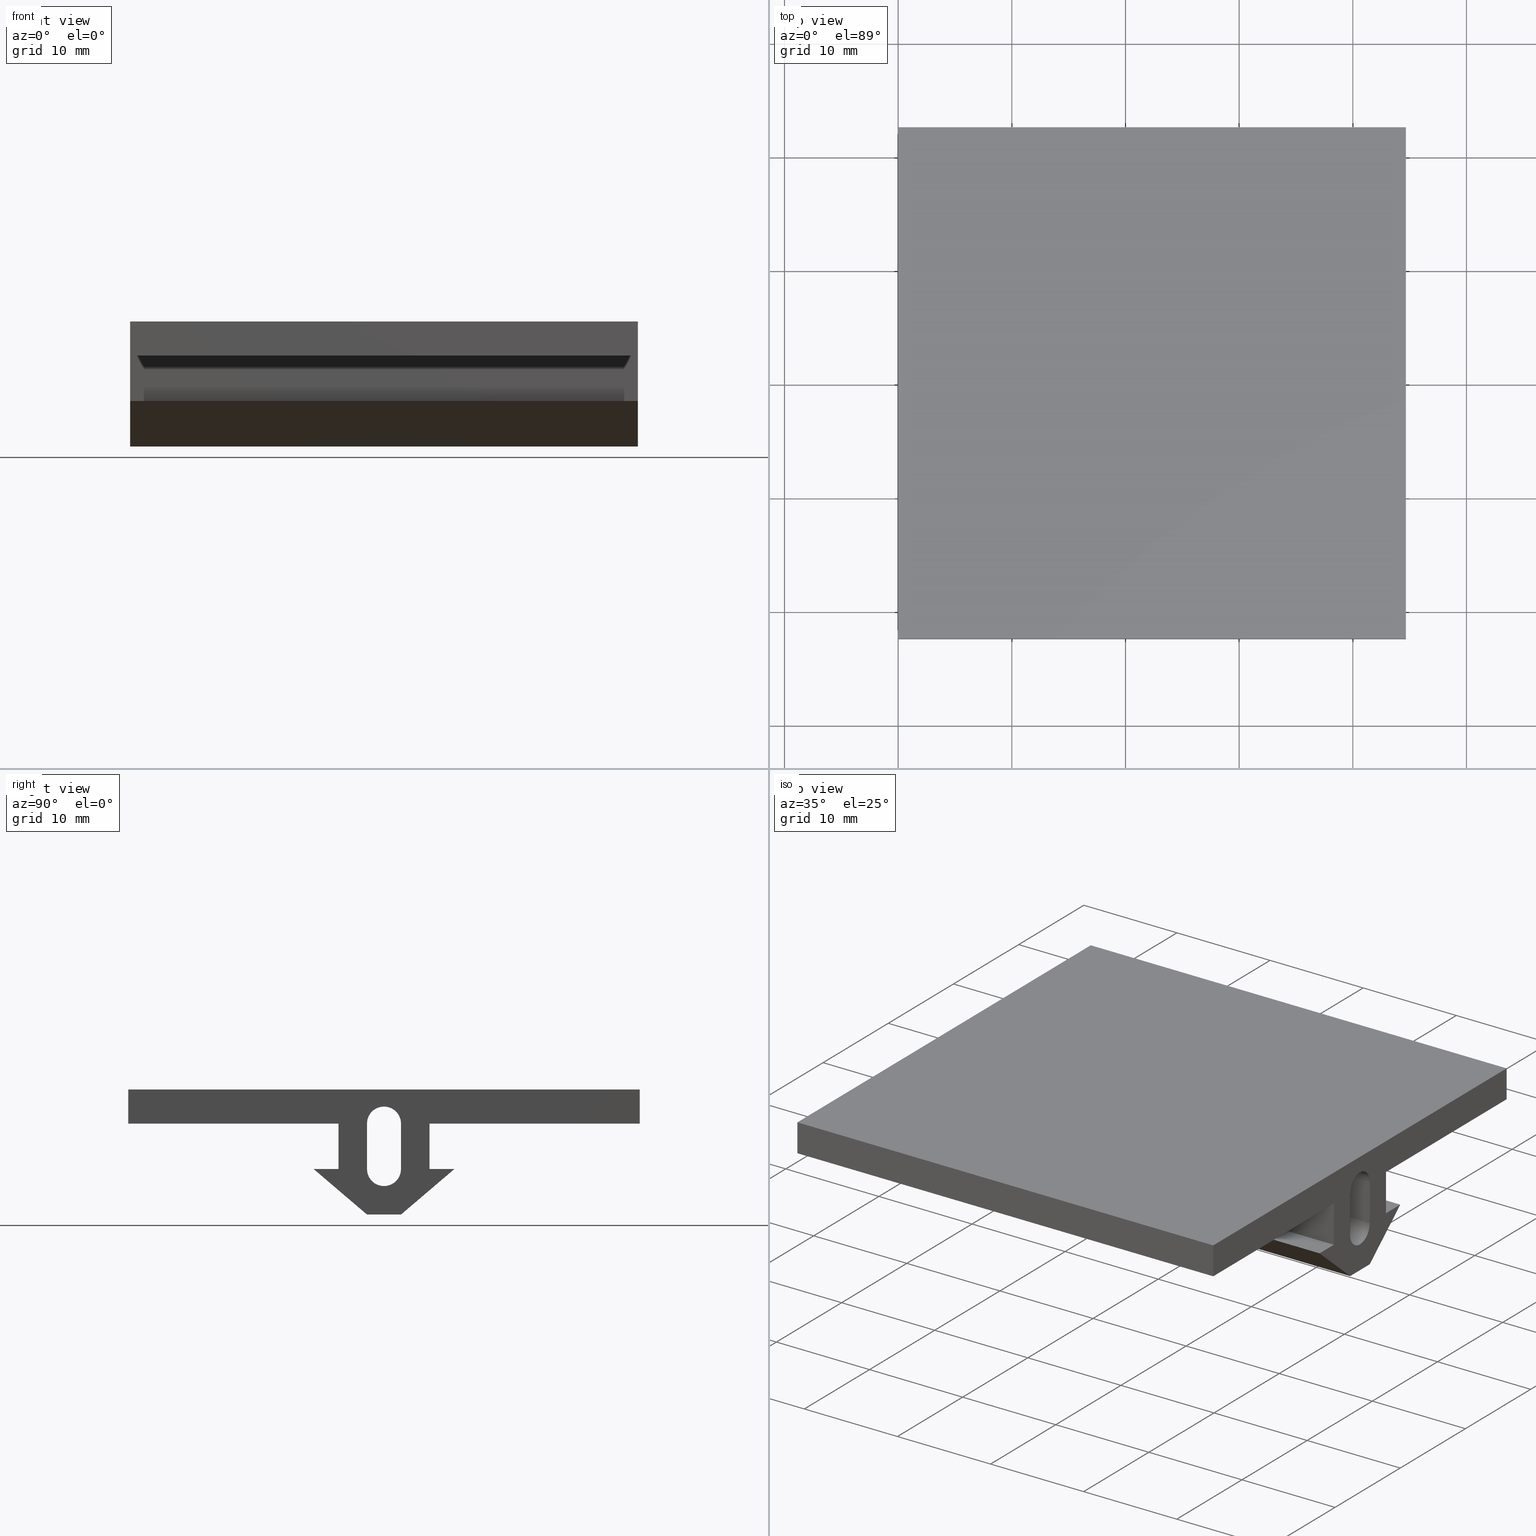
[diagram: canonical four-view strip — front | top / right | iso, engineering-drawing reading convention]
A machine part, canonical four-view strip (front | top / right | iso — engineering-drawing reading convention). The complete STEP part file that produces these views, byte-faithful:
ISO-10303-21;
HEADER;
FILE_DESCRIPTION (( 'STEP AP203' ),
    '1' );
FILE_NAME ('Part4.STEP',
    '2011-05-05T07:06:42',
    ( ' ' ),
    ( ' ' ),
    'SwSTEP 2.0',
    'SolidWorks 2009',
    '' );
FILE_SCHEMA (( 'CONFIG_CONTROL_DESIGN' ));
ENDSEC;

DATA;
#1 = EDGE_CURVE ( 'NONE', #173, #171, #128, .T. ) ;
#2 = EDGE_LOOP ( 'NONE', ( #219, #202, #52, #54 ) ) ;
#3 = ADVANCED_FACE ( 'NONE', ( #129 ), #123, .F. ) ;
#4 = ORIENTED_EDGE ( 'NONE', *, *, #7, .T. ) ;
#5 = ORIENTED_EDGE ( 'NONE', *, *, #209, .T. ) ;
#6 = EDGE_LOOP ( 'NONE', ( #204, #47, #165, #168 ) ) ;
#7 = EDGE_CURVE ( 'NONE', #24, #171, #298, .T. ) ;
#8 = ORIENTED_EDGE ( 'NONE', *, *, #14, .F. ) ;
#9 = EDGE_CURVE ( 'NONE', #16, #24, #294, .T. ) ;
#10 = VERTEX_POINT ( 'NONE', #289 ) ;
#11 = EDGE_LOOP ( 'NONE', ( #174, #4, #172, #8 ) ) ;
#12 = ADVANCED_FACE ( 'NONE', ( #288 ), #287, .F. ) ;
#13 = ORIENTED_EDGE ( 'NONE', *, *, #214, .F. ) ;
#14 = EDGE_CURVE ( 'NONE', #16, #173, #154, .T. ) ;
#15 = VERTEX_POINT ( 'NONE', #150 ) ;
#16 = VERTEX_POINT ( 'NONE', #149 ) ;
#17 = EDGE_CURVE ( 'NONE', #10, #15, #147, .T. ) ;
#18 = ORIENTED_EDGE ( 'NONE', *, *, #17, .F. ) ;
#19 = EDGE_CURVE ( 'NONE', #201, #15, #148, .T. ) ;
#20 = ORIENTED_EDGE ( 'NONE', *, *, #23, .T. ) ;
#21 = ORIENTED_EDGE ( 'NONE', *, *, #19, .T. ) ;
#22 = ORIENTED_EDGE ( 'NONE', *, *, #220, .F. ) ;
#23 = EDGE_CURVE ( 'NONE', #15, #218, #281, .T. ) ;
#24 = VERTEX_POINT ( 'NONE', #277 ) ;
#25 = ORIENTED_EDGE ( 'NONE', *, *, #26, .F. ) ;
#26 = EDGE_CURVE ( 'NONE', #10, #210, #254, .T. ) ;
#27 = ORIENTED_EDGE ( 'NONE', *, *, #32, .F. ) ;
#28 = EDGE_CURVE ( 'NONE', #218, #29, #250, .T. ) ;
#29 = VERTEX_POINT ( 'NONE', #246 ) ;
#30 = ADVANCED_FACE ( 'NONE', ( #245 ), #244, .F. ) ;
#31 = ORIENTED_EDGE ( 'NONE', *, *, #220, .T. ) ;
#32 = EDGE_CURVE ( 'NONE', #210, #36, #239, .T. ) ;
#33 = ORIENTED_EDGE ( 'NONE', *, *, #79, .T. ) ;
#34 = EDGE_LOOP ( 'NONE', ( #33, #44, #77, #46 ) ) ;
#35 = EDGE_CURVE ( 'NONE', #36, #29, #186, .T. ) ;
#36 = VERTEX_POINT ( 'NONE', #182 ) ;
#37 = ORIENTED_EDGE ( 'NONE', *, *, #35, .F. ) ;
#38 = ADVANCED_FACE ( 'NONE', ( #181 ), #177, .F. ) ;
#39 = ORIENTED_EDGE ( 'NONE', *, *, #262, .T. ) ;
#40 = VERTEX_POINT ( 'NONE', #178 ) ;
#41 = EDGE_CURVE ( 'NONE', #40, #42, #275, .T. ) ;
#42 = VERTEX_POINT ( 'NONE', #271 ) ;
#43 = ORIENTED_EDGE ( 'NONE', *, *, #74, .T. ) ;
#44 = ORIENTED_EDGE ( 'NONE', *, *, #41, .F. ) ;
#45 = EDGE_CURVE ( 'NONE', #36, #40, #269, .T. ) ;
#46 = ORIENTED_EDGE ( 'NONE', *, *, #35, .T. ) ;
#47 = ORIENTED_EDGE ( 'NONE', *, *, #48, .F. ) ;
#48 = EDGE_CURVE ( 'NONE', #49, #207, #333, .T. ) ;
#49 = VERTEX_POINT ( 'NONE', #334 ) ;
#50 = EDGE_CURVE ( 'NONE', #51, #201, #483, .T. ) ;
#51 = VERTEX_POINT ( 'NONE', #479 ) ;
#52 = ORIENTED_EDGE ( 'NONE', *, *, #53, .F. ) ;
#53 = EDGE_CURVE ( 'NONE', #60, #51, #478, .T. ) ;
#54 = ORIENTED_EDGE ( 'NONE', *, *, #59, .T. ) ;
#55 = ADVANCED_FACE ( 'NONE', ( #336 ), #492, .F. ) ;
#56 = EDGE_LOOP ( 'NONE', ( #21, #18, #13, #215 ) ) ;
#57 = VERTEX_POINT ( 'NONE', #501 ) ;
#58 = ORIENTED_EDGE ( 'NONE', *, *, #59, .F. ) ;
#59 = EDGE_CURVE ( 'NONE', #60, #57, #441, .T. ) ;
#60 = VERTEX_POINT ( 'NONE', #437 ) ;
#61 = ORIENTED_EDGE ( 'NONE', *, *, #62, .F. ) ;
#62 = EDGE_CURVE ( 'NONE', #221, #60, #436, .T. ) ;
#63 = ORIENTED_EDGE ( 'NONE', *, *, #263, .F. ) ;
#64 = ORIENTED_EDGE ( 'NONE', *, *, #65, .T. ) ;
#65 = EDGE_CURVE ( 'NONE', #76, #66, #432, .T. ) ;
#66 = VERTEX_POINT ( 'NONE', #428 ) ;
#67 = VERTEX_POINT ( 'NONE', #427 ) ;
#68 = ADVANCED_FACE ( 'NONE', ( #426 ), #425, .F. ) ;
#69 = EDGE_CURVE ( 'NONE', #40, #67, #448, .T. ) ;
#70 = ORIENTED_EDGE ( 'NONE', *, *, #41, .T. ) ;
#71 = ORIENTED_EDGE ( 'NONE', *, *, #69, .F. ) ;
#72 = EDGE_LOOP ( 'NONE', ( #64, #63, #306, #304 ) ) ;
#73 = EDGE_CURVE ( 'NONE', #67, #76, #444, .T. ) ;
#74 = EDGE_CURVE ( 'NONE', #42, #76, #419, .T. ) ;
#75 = ORIENTED_EDGE ( 'NONE', *, *, #73, .F. ) ;
#76 = VERTEX_POINT ( 'NONE', #415 ) ;
#77 = ORIENTED_EDGE ( 'NONE', *, *, #45, .F. ) ;
#78 = EDGE_LOOP ( 'NONE', ( #43, #75, #71, #70 ) ) ;
#79 = EDGE_CURVE ( 'NONE', #29, #42, #414, .T. ) ;
#80 = EDGE_LOOP ( 'NONE', ( #258, #260, #261, #96 ) ) ;
#81 = ORIENTED_EDGE ( 'NONE', *, *, #26, .T. ) ;
#82 = ORIENTED_EDGE ( 'NONE', *, *, #32, .T. ) ;
#83 = ORIENTED_EDGE ( 'NONE', *, *, #45, .T. ) ;
#84 = ORIENTED_EDGE ( 'NONE', *, *, #69, .T. ) ;
#85 = ORIENTED_EDGE ( 'NONE', *, *, #264, .T. ) ;
#86 = ORIENTED_EDGE ( 'NONE', *, *, #238, .T. ) ;
#87 = ORIENTED_EDGE ( 'NONE', *, *, #7, .F. ) ;
#88 = EDGE_LOOP ( 'NONE', ( #305, #233, #237, #115 ) ) ;
#89 = ORIENTED_EDGE ( 'NONE', *, *, #90, .T. ) ;
#90 = EDGE_CURVE ( 'NONE', #309, #91, #410, .T. ) ;
#91 = VERTEX_POINT ( 'NONE', #406 ) ;
#92 = ADVANCED_FACE ( 'NONE', ( #405 ), #404, .F. ) ;
#93 = ORIENTED_EDGE ( 'NONE', *, *, #94, .F. ) ;
#94 = EDGE_CURVE ( 'NONE', #171, #91, #399, .T. ) ;
#95 = ADVANCED_FACE ( 'NONE', ( #394 ), #390, .F. ) ;
#96 = ORIENTED_EDGE ( 'NONE', *, *, #265, .T. ) ;
#97 = ADVANCED_FACE ( 'NONE', ( #391, #529 ), #528, .T. ) ;
#98 = EDGE_LOOP ( 'NONE', ( #99, #100, #101, #266, #267 ) ) ;
#99 = ORIENTED_EDGE ( 'NONE', *, *, #9, .F. ) ;
#100 = ORIENTED_EDGE ( 'NONE', *, *, #117, .F. ) ;
#101 = ORIENTED_EDGE ( 'NONE', *, *, #107, .F. ) ;
#102 = VERTEX_POINT ( 'NONE', #526 ) ;
#103 = ORIENTED_EDGE ( 'NONE', *, *, #104, .F. ) ;
#104 = EDGE_CURVE ( 'NONE', #105, #102, #332, .T. ) ;
#105 = VERTEX_POINT ( 'NONE', #328 ) ;
#106 = ORIENTED_EDGE ( 'NONE', *, *, #107, .T. ) ;
#107 = EDGE_CURVE ( 'NONE', #105, #303, #327, .T. ) ;
#108 = ORIENTED_EDGE ( 'NONE', *, *, #302, .T. ) ;
#109 = ADVANCED_FACE ( 'NONE', ( #322 ), #321, .T. ) ;
#110 = EDGE_LOOP ( 'NONE', ( #111, #113, #114, #311 ) ) ;
#111 = ORIENTED_EDGE ( 'NONE', *, *, #112, .F. ) ;
#112 = EDGE_CURVE ( 'NONE', #91, #102, #315, .T. ) ;
#113 = ORIENTED_EDGE ( 'NONE', *, *, #90, .F. ) ;
#114 = ORIENTED_EDGE ( 'NONE', *, *, #310, .T. ) ;
#115 = ORIENTED_EDGE ( 'NONE', *, *, #263, .T. ) ;
#116 = ORIENTED_EDGE ( 'NONE', *, *, #117, .T. ) ;
#117 = EDGE_CURVE ( 'NONE', #303, #16, #475, .T. ) ;
#118 = ORIENTED_EDGE ( 'NONE', *, *, #14, .T. ) ;
#119 = DIRECTION ( 'NONE',  ( 0.0000000000000000000, 1.000000000000000000, 3.958170582816934900E-016 ) ) ;
#120 = DIRECTION ( 'NONE',  ( 0.0000000000000000000, 3.958170582816934900E-016, -1.000000000000000000 ) ) ;
#121 = CARTESIAN_POINT ( 'NONE',  ( 44.66704193895279200, -4.000000000000001800, -7.000000000000002700 ) ) ;
#122 = AXIS2_PLACEMENT_3D ( 'NONE', #121, #120, #119 ) ;
#123 = PLANE ( 'NONE',  #122 ) ;
#124 = DIRECTION ( 'NONE',  ( 0.0000000000000000000, 0.0000000000000000000, -1.000000000000000000 ) ) ;
#125 = DIRECTION ( 'NONE',  ( 1.000000000000000000, 0.0000000000000000000, 0.0000000000000000000 ) ) ;
#126 = CARTESIAN_POINT ( 'NONE',  ( 0.0000000000000000000, 3.673819061467131800E-016, -3.000000000000000000 ) ) ;
#127 = AXIS2_PLACEMENT_3D ( 'NONE', #126, #125, #124 ) ;
#128 = CIRCLE ( 'NONE', #127, 1.500000000000000400 ) ;
#129 = FACE_OUTER_BOUND ( 'NONE', #2, .T. ) ;
#130 = ORIENTED_EDGE ( 'NONE', *, *, #200, .F. ) ;
#131 = ORIENTED_EDGE ( 'NONE', *, *, #65, .F. ) ;
#132 = ORIENTED_EDGE ( 'NONE', *, *, #74, .F. ) ;
#133 = ORIENTED_EDGE ( 'NONE', *, *, #313, .F. ) ;
#134 = ORIENTED_EDGE ( 'NONE', *, *, #23, .F. ) ;
#135 = ORIENTED_EDGE ( 'NONE', *, *, #79, .F. ) ;
#136 = ORIENTED_EDGE ( 'NONE', *, *, #255, .F. ) ;
#137 = CLOSED_SHELL ( 'NONE', ( #12, #203, #314, #225, #3, #55, #216, #211, #30, #38, #68, #95, #92, #197, #228, #109, #312, #97, #196 ) ) ;
#138 = ORIENTED_EDGE ( 'NONE', *, *, #28, .F. ) ;
#139 = ORIENTED_EDGE ( 'NONE', *, *, #19, .F. ) ;
#140 = ORIENTED_EDGE ( 'NONE', *, *, #94, .T. ) ;
#141 = EDGE_LOOP ( 'NONE', ( #193, #194, #195, #131, #132, #135, #138, #134, #139, #130, #133, #136 ) ) ;
#142 = EDGE_LOOP ( 'NONE', ( #192, #140, #191, #190, #143 ) ) ;
#143 = ORIENTED_EDGE ( 'NONE', *, *, #299, .T. ) ;
#144 = DIRECTION ( 'NONE',  ( -1.000000000000000000, -0.0000000000000000000, -0.0000000000000000000 ) ) ;
#145 = VECTOR ( 'NONE', #144, 1000.000000000000000 ) ;
#146 = CARTESIAN_POINT ( 'NONE',  ( 44.66704193895279200, -1.499999999999998700, -11.00000000000000000 ) ) ;
#147 = LINE ( 'NONE', #146, #145 ) ;
#148 = LINE ( 'NONE', #284, #283 ) ;
#149 = CARTESIAN_POINT ( 'NONE',  ( 44.66704193895279200, 1.500000000000000900, -3.000000000000000000 ) ) ;
#150 = CARTESIAN_POINT ( 'NONE',  ( 0.0000000000000000000, -1.499999999999998700, -11.00000000000000000 ) ) ;
#151 = DIRECTION ( 'NONE',  ( -1.000000000000000000, -0.0000000000000000000, -0.0000000000000000000 ) ) ;
#152 = VECTOR ( 'NONE', #151, 1000.000000000000000 ) ;
#153 = CARTESIAN_POINT ( 'NONE',  ( 44.66704193895279200, 1.500000000000000900, -3.000000000000000000 ) ) ;
#154 = LINE ( 'NONE', #153, #152 ) ;
#155 = DIRECTION ( 'NONE',  ( 0.0000000000000000000, 0.0000000000000000000, 1.000000000000000000 ) ) ;
#156 = DIRECTION ( 'NONE',  ( -1.000000000000000000, -0.0000000000000000000, -0.0000000000000000000 ) ) ;
#157 = EDGE_LOOP ( 'NONE', ( #158, #208, #222, #224 ) ) ;
#158 = ORIENTED_EDGE ( 'NONE', *, *, #255, .T. ) ;
#159 = EDGE_LOOP ( 'NONE', ( #160, #161, #162, #163, #164, #81, #82, #83, #84, #85, #86, #39 ) ) ;
#160 = ORIENTED_EDGE ( 'NONE', *, *, #166, .T. ) ;
#161 = ORIENTED_EDGE ( 'NONE', *, *, #223, .T. ) ;
#162 = ORIENTED_EDGE ( 'NONE', *, *, #62, .T. ) ;
#163 = ORIENTED_EDGE ( 'NONE', *, *, #53, .T. ) ;
#164 = ORIENTED_EDGE ( 'NONE', *, *, #214, .T. ) ;
#165 = ORIENTED_EDGE ( 'NONE', *, *, #166, .F. ) ;
#166 = EDGE_CURVE ( 'NONE', #167, #49, #471, .T. ) ;
#167 = VERTEX_POINT ( 'NONE', #467 ) ;
#168 = ORIENTED_EDGE ( 'NONE', *, *, #169, .T. ) ;
#169 = EDGE_CURVE ( 'NONE', #167, #206, #466, .T. ) ;
#170 = MANIFOLD_SOLID_BREP ( 'NONE', #137 ) ;
#171 = VERTEX_POINT ( 'NONE', #462 ) ;
#172 = ORIENTED_EDGE ( 'NONE', *, *, #1, .F. ) ;
#173 = VERTEX_POINT ( 'NONE', #461 ) ;
#174 = ORIENTED_EDGE ( 'NONE', *, *, #9, .T. ) ;
#175 = ORIENTED_EDGE ( 'NONE', *, *, #17, .T. ) ;
#176 = AXIS2_PLACEMENT_3D ( 'NONE', #180, #179, #276 ) ;
#177 = PLANE ( 'NONE',  #176 ) ;
#178 = CARTESIAN_POINT ( 'NONE',  ( 44.66704193895279200, 4.000000000000003600, -7.000000000000001800 ) ) ;
#179 = DIRECTION ( 'NONE',  ( 0.0000000000000000000, -1.000000000000000000, -8.673617379884029600E-016 ) ) ;
#180 = CARTESIAN_POINT ( 'NONE',  ( 44.66704193895279200, 4.000000000000000000, -2.999999999999999100 ) ) ;
#181 = FACE_OUTER_BOUND ( 'NONE', #78, .T. ) ;
#182 = CARTESIAN_POINT ( 'NONE',  ( 44.66704193895279200, 6.191319751992913300, -7.000000000000001800 ) ) ;
#183 = DIRECTION ( 'NONE',  ( -1.000000000000000000, -0.0000000000000000000, -0.0000000000000000000 ) ) ;
#184 = VECTOR ( 'NONE', #183, 1000.000000000000000 ) ;
#185 = CARTESIAN_POINT ( 'NONE',  ( 44.66704193895279200, 6.191319751992913300, -7.000000000000001800 ) ) ;
#186 = LINE ( 'NONE', #185, #184 ) ;
#187 = DIRECTION ( 'NONE',  ( -0.0000000000000000000, 0.7609476459801682900, 0.6488132859900761500 ) ) ;
#188 = VECTOR ( 'NONE', #187, 1000.000000000000200 ) ;
#189 = CARTESIAN_POINT ( 'NONE',  ( 44.66704193895279200, 6.191319751992913300, -7.000000000000001800 ) ) ;
#190 = ORIENTED_EDGE ( 'NONE', *, *, #231, .T. ) ;
#191 = ORIENTED_EDGE ( 'NONE', *, *, #112, .T. ) ;
#192 = ORIENTED_EDGE ( 'NONE', *, *, #1, .T. ) ;
#193 = ORIENTED_EDGE ( 'NONE', *, *, #205, .F. ) ;
#194 = ORIENTED_EDGE ( 'NONE', *, *, #259, .F. ) ;
#195 = ORIENTED_EDGE ( 'NONE', *, *, #235, .F. ) ;
#196 = ADVANCED_FACE ( 'NONE', ( #460, #459 ), #458, .F. ) ;
#197 = ADVANCED_FACE ( 'NONE', ( #457 ), #452, .T. ) ;
#198 = EDGE_LOOP ( 'NONE', ( #199, #301, #116, #118 ) ) ;
#199 = ORIENTED_EDGE ( 'NONE', *, *, #299, .F. ) ;
#200 = EDGE_CURVE ( 'NONE', #57, #201, #519, .T. ) ;
#201 = VERTEX_POINT ( 'NONE', #515 ) ;
#202 = ORIENTED_EDGE ( 'NONE', *, *, #50, .F. ) ;
#203 = ADVANCED_FACE ( 'NONE', ( #514 ), #513, .F. ) ;
#204 = ORIENTED_EDGE ( 'NONE', *, *, #205, .T. ) ;
#205 = EDGE_CURVE ( 'NONE', #206, #207, #508, .T. ) ;
#206 = VERTEX_POINT ( 'NONE', #504 ) ;
#207 = VERTEX_POINT ( 'NONE', #503 ) ;
#208 = ORIENTED_EDGE ( 'NONE', *, *, #209, .F. ) ;
#209 = EDGE_CURVE ( 'NONE', #221, #256, #389, .T. ) ;
#210 = VERTEX_POINT ( 'NONE', #385 ) ;
#211 = ADVANCED_FACE ( 'NONE', ( #384 ), #383, .F. ) ;
#212 = EDGE_LOOP ( 'NONE', ( #213, #37, #27, #31 ) ) ;
#213 = ORIENTED_EDGE ( 'NONE', *, *, #28, .T. ) ;
#214 = EDGE_CURVE ( 'NONE', #51, #10, #378, .T. ) ;
#215 = ORIENTED_EDGE ( 'NONE', *, *, #50, .T. ) ;
#216 = ADVANCED_FACE ( 'NONE', ( #374 ), #373, .F. ) ;
#217 = EDGE_LOOP ( 'NONE', ( #20, #22, #25, #175 ) ) ;
#218 = VERTEX_POINT ( 'NONE', #368 ) ;
#219 = ORIENTED_EDGE ( 'NONE', *, *, #200, .T. ) ;
#220 = EDGE_CURVE ( 'NONE', #210, #218, #367, .T. ) ;
#221 = VERTEX_POINT ( 'NONE', #363 ) ;
#222 = ORIENTED_EDGE ( 'NONE', *, *, #223, .F. ) ;
#223 = EDGE_CURVE ( 'NONE', #49, #221, #362, .T. ) ;
#224 = ORIENTED_EDGE ( 'NONE', *, *, #48, .T. ) ;
#225 = ADVANCED_FACE ( 'NONE', ( #358 ), #357, .F. ) ;
#226 = EDGE_LOOP ( 'NONE', ( #227, #58, #61, #5 ) ) ;
#227 = ORIENTED_EDGE ( 'NONE', *, *, #313, .T. ) ;
#228 = ADVANCED_FACE ( 'NONE', ( #354 ), #351, .F. ) ;
#229 = EDGE_LOOP ( 'NONE', ( #230, #103, #106, #108 ) ) ;
#230 = ORIENTED_EDGE ( 'NONE', *, *, #231, .F. ) ;
#231 = EDGE_CURVE ( 'NONE', #102, #300, #349, .T. ) ;
#232 = VERTEX_POINT ( 'NONE', #341 ) ;
#233 = ORIENTED_EDGE ( 'NONE', *, *, #265, .F. ) ;
#234 = VERTEX_POINT ( 'NONE', #340 ) ;
#235 = EDGE_CURVE ( 'NONE', #66, #232, #339, .T. ) ;
#236 = VERTEX_POINT ( 'NONE', #490 ) ;
#237 = ORIENTED_EDGE ( 'NONE', *, *, #238, .F. ) ;
#238 = EDGE_CURVE ( 'NONE', #236, #234, #489, .T. ) ;
#239 = LINE ( 'NONE', #189, #188 ) ;
#240 = DIRECTION ( 'NONE',  ( -1.000000000000000000, 0.0000000000000000000, -0.0000000000000000000 ) ) ;
#241 = DIRECTION ( 'NONE',  ( 0.0000000000000000000, 0.0000000000000000000, -1.000000000000000000 ) ) ;
#242 = CARTESIAN_POINT ( 'NONE',  ( 44.66704193895279200, 4.000000000000003600, -7.000000000000001800 ) ) ;
#243 = AXIS2_PLACEMENT_3D ( 'NONE', #242, #241, #240 ) ;
#244 = PLANE ( 'NONE',  #243 ) ;
#245 = FACE_OUTER_BOUND ( 'NONE', #34, .T. ) ;
#246 = CARTESIAN_POINT ( 'NONE',  ( 0.0000000000000000000, 6.191319751992913300, -7.000000000000001800 ) ) ;
#247 = DIRECTION ( 'NONE',  ( -0.0000000000000000000, 0.7609476459801682900, 0.6488132859900761500 ) ) ;
#248 = VECTOR ( 'NONE', #247, 1000.000000000000200 ) ;
#249 = CARTESIAN_POINT ( 'NONE',  ( 0.0000000000000000000, 6.191319751992913300, -7.000000000000001800 ) ) ;
#250 = LINE ( 'NONE', #249, #248 ) ;
#251 = DIRECTION ( 'NONE',  ( 0.0000000000000000000, 1.000000000000000000, 0.0000000000000000000 ) ) ;
#252 = VECTOR ( 'NONE', #251, 1000.000000000000000 ) ;
#253 = CARTESIAN_POINT ( 'NONE',  ( 44.66704193895279200, -1.499999999999998700, -11.00000000000000000 ) ) ;
#254 = LINE ( 'NONE', #253, #252 ) ;
#255 = EDGE_CURVE ( 'NONE', #207, #256, #485, .T. ) ;
#256 = VERTEX_POINT ( 'NONE', #569 ) ;
#257 = EDGE_LOOP ( 'NONE', ( #87, #307, #89, #93 ) ) ;
#258 = ORIENTED_EDGE ( 'NONE', *, *, #259, .T. ) ;
#259 = EDGE_CURVE ( 'NONE', #232, #206, #607, .T. ) ;
#260 = ORIENTED_EDGE ( 'NONE', *, *, #169, .F. ) ;
#261 = ORIENTED_EDGE ( 'NONE', *, *, #262, .F. ) ;
#262 = EDGE_CURVE ( 'NONE', #234, #167, #588, .T. ) ;
#263 = EDGE_CURVE ( 'NONE', #236, #66, #557, .T. ) ;
#264 = EDGE_CURVE ( 'NONE', #67, #236, #610, .T. ) ;
#265 = EDGE_CURVE ( 'NONE', #234, #232, #674, .T. ) ;
#266 = ORIENTED_EDGE ( 'NONE', *, *, #310, .F. ) ;
#267 = ORIENTED_EDGE ( 'NONE', *, *, #308, .F. ) ;
#268 = CARTESIAN_POINT ( 'NONE',  ( 44.66704193895279200, 4.000000000000003600, -7.000000000000001800 ) ) ;
#269 = LINE ( 'NONE', #268, #335 ) ;
#270 = VECTOR ( 'NONE', #608, 1000.000000000000000 ) ;
#271 = CARTESIAN_POINT ( 'NONE',  ( 0.0000000000000000000, 4.000000000000003600, -7.000000000000001800 ) ) ;
#272 = DIRECTION ( 'NONE',  ( -1.000000000000000000, -0.0000000000000000000, -0.0000000000000000000 ) ) ;
#273 = VECTOR ( 'NONE', #272, 1000.000000000000000 ) ;
#274 = CARTESIAN_POINT ( 'NONE',  ( 44.66704193895279200, 4.000000000000003600, -7.000000000000001800 ) ) ;
#275 = LINE ( 'NONE', #274, #273 ) ;
#276 = DIRECTION ( 'NONE',  ( 0.0000000000000000000, 8.673617379884029600E-016, -1.000000000000000000 ) ) ;
#277 = CARTESIAN_POINT ( 'NONE',  ( 44.66704193895279200, 3.673819061467131800E-016, -1.499999999999999600 ) ) ;
#278 = DIRECTION ( 'NONE',  ( 0.0000000000000000000, 1.000000000000000000, 0.0000000000000000000 ) ) ;
#279 = VECTOR ( 'NONE', #278, 1000.000000000000000 ) ;
#280 = CARTESIAN_POINT ( 'NONE',  ( 0.0000000000000000000, -1.499999999999998700, -11.00000000000000000 ) ) ;
#281 = LINE ( 'NONE', #280, #279 ) ;
#282 = DIRECTION ( 'NONE',  ( 0.0000000000000000000, 0.7609476459801684000, -0.6488132859900761500 ) ) ;
#283 = VECTOR ( 'NONE', #282, 1000.000000000000000 ) ;
#284 = CARTESIAN_POINT ( 'NONE',  ( 0.0000000000000000000, -6.191319751992911500, -7.000000000000003600 ) ) ;
#285 = CARTESIAN_POINT ( 'NONE',  ( 44.66704193895279200, 3.673819061467131800E-016, -3.000000000000000000 ) ) ;
#286 = AXIS2_PLACEMENT_3D ( 'NONE', #285, #156, #155 ) ;
#287 = CYLINDRICAL_SURFACE ( 'NONE', #286, 1.500000000000000400 ) ;
#288 = FACE_OUTER_BOUND ( 'NONE', #11, .T. ) ;
#289 = CARTESIAN_POINT ( 'NONE',  ( 44.66704193895279200, -1.499999999999998700, -11.00000000000000000 ) ) ;
#290 = DIRECTION ( 'NONE',  ( 0.0000000000000000000, 0.0000000000000000000, -1.000000000000000000 ) ) ;
#291 = DIRECTION ( 'NONE',  ( 1.000000000000000000, 0.0000000000000000000, 0.0000000000000000000 ) ) ;
#292 = CARTESIAN_POINT ( 'NONE',  ( 44.66704193895279200, 3.673819061467131800E-016, -3.000000000000000000 ) ) ;
#293 = AXIS2_PLACEMENT_3D ( 'NONE', #292, #291, #290 ) ;
#294 = CIRCLE ( 'NONE', #293, 1.500000000000000400 ) ;
#295 = DIRECTION ( 'NONE',  ( -1.000000000000000000, -0.0000000000000000000, -0.0000000000000000000 ) ) ;
#296 = VECTOR ( 'NONE', #295, 1000.000000000000000 ) ;
#297 = CARTESIAN_POINT ( 'NONE',  ( 44.66704193895279200, 3.673819061467131800E-016, -1.499999999999999600 ) ) ;
#298 = LINE ( 'NONE', #297, #296 ) ;
#299 = EDGE_CURVE ( 'NONE', #300, #173, #562, .T. ) ;
#300 = VERTEX_POINT ( 'NONE', #558 ) ;
#301 = ORIENTED_EDGE ( 'NONE', *, *, #302, .F. ) ;
#302 = EDGE_CURVE ( 'NONE', #303, #300, #594, .T. ) ;
#303 = VERTEX_POINT ( 'NONE', #590 ) ;
#304 = ORIENTED_EDGE ( 'NONE', *, *, #73, .T. ) ;
#305 = ORIENTED_EDGE ( 'NONE', *, *, #235, .T. ) ;
#306 = ORIENTED_EDGE ( 'NONE', *, *, #264, .F. ) ;
#307 = ORIENTED_EDGE ( 'NONE', *, *, #308, .T. ) ;
#308 = EDGE_CURVE ( 'NONE', #24, #309, #589, .T. ) ;
#309 = VERTEX_POINT ( 'NONE', #664 ) ;
#310 = EDGE_CURVE ( 'NONE', #309, #105, #663, .T. ) ;
#311 = ORIENTED_EDGE ( 'NONE', *, *, #104, .T. ) ;
#312 = ADVANCED_FACE ( 'NONE', ( #659 ), #658, .F. ) ;
#313 = EDGE_CURVE ( 'NONE', #256, #57, #653, .T. ) ;
#314 = ADVANCED_FACE ( 'NONE', ( #583 ), #582, .F. ) ;
#315 = LINE ( 'NONE', #319, #477 ) ;
#316 = DIRECTION ( 'NONE',  ( 0.0000000000000000000, -2.168404344971008600E-016, 1.000000000000000000 ) ) ;
#317 = DIRECTION ( 'NONE',  ( -0.0000000000000000000, 1.000000000000000000, 2.168404344971008600E-016 ) ) ;
#318 = CARTESIAN_POINT ( 'NONE',  ( 44.66704193895279200, -1.500000000000000000, -3.000000000000000400 ) ) ;
#319 = CARTESIAN_POINT ( 'NONE',  ( 0.0000000000000000000, -1.500000000000000000, -3.000000000000000400 ) ) ;
#320 = AXIS2_PLACEMENT_3D ( 'NONE', #318, #317, #316 ) ;
#321 = PLANE ( 'NONE',  #320 ) ;
#322 = FACE_OUTER_BOUND ( 'NONE', #110, .T. ) ;
#323 = DIRECTION ( 'NONE',  ( 0.0000000000000000000, 0.0000000000000000000, -1.000000000000000000 ) ) ;
#324 = DIRECTION ( 'NONE',  ( 1.000000000000000000, 0.0000000000000000000, 0.0000000000000000000 ) ) ;
#325 = CARTESIAN_POINT ( 'NONE',  ( 44.66704193895279200, 8.572244476756639800E-016, -7.000000000000000900 ) ) ;
#326 = AXIS2_PLACEMENT_3D ( 'NONE', #325, #324, #323 ) ;
#327 = CIRCLE ( 'NONE', #326, 1.499999999999999600 ) ;
#328 = CARTESIAN_POINT ( 'NONE',  ( 44.66704193895279200, -1.499999999999999100, -7.000000000000000000 ) ) ;
#329 = DIRECTION ( 'NONE',  ( -1.000000000000000000, -0.0000000000000000000, -0.0000000000000000000 ) ) ;
#330 = VECTOR ( 'NONE', #329, 1000.000000000000000 ) ;
#331 = CARTESIAN_POINT ( 'NONE',  ( 44.66704193895279200, -1.499999999999999100, -7.000000000000000000 ) ) ;
#332 = LINE ( 'NONE', #331, #330 ) ;
#333 = LINE ( 'NONE', #497, #496 ) ;
#334 = CARTESIAN_POINT ( 'NONE',  ( 44.66704193895279200, -22.50000000000000000, -3.000000000000000000 ) ) ;
#335 = VECTOR ( 'NONE', #498, 1000.000000000000000 ) ;
#336 = FACE_OUTER_BOUND ( 'NONE', #56, .T. ) ;
#337 = VECTOR ( 'NONE', #491, 1000.000000000000000 ) ;
#338 = CARTESIAN_POINT ( 'NONE',  ( 0.0000000000000000000, 22.50000000000000000, 5.510728592200697700E-015 ) ) ;
#339 = LINE ( 'NONE', #338, #337 ) ;
#340 = CARTESIAN_POINT ( 'NONE',  ( 44.66704193895279200, 22.50000000000000000, 5.510728592200697700E-015 ) ) ;
#341 = CARTESIAN_POINT ( 'NONE',  ( 0.0000000000000000000, 22.50000000000000000, 5.510728592200697700E-015 ) ) ;
#342 = DIRECTION ( 'NONE',  ( 0.0000000000000000000, 0.0000000000000000000, -1.000000000000000000 ) ) ;
#343 = DIRECTION ( 'NONE',  ( 1.000000000000000000, 0.0000000000000000000, 0.0000000000000000000 ) ) ;
#344 = CARTESIAN_POINT ( 'NONE',  ( 0.0000000000000000000, 8.572244476756639800E-016, -7.000000000000000900 ) ) ;
#345 = AXIS2_PLACEMENT_3D ( 'NONE', #344, #343, #342 ) ;
#346 = DIRECTION ( 'NONE',  ( 0.0000000000000000000, 0.0000000000000000000, 1.000000000000000000 ) ) ;
#347 = DIRECTION ( 'NONE',  ( -1.000000000000000000, -0.0000000000000000000, -0.0000000000000000000 ) ) ;
#348 = AXIS2_PLACEMENT_3D ( 'NONE', #350, #347, #346 ) ;
#349 = CIRCLE ( 'NONE', #345, 1.499999999999999600 ) ;
#350 = CARTESIAN_POINT ( 'NONE',  ( 44.66704193895279200, 8.572244476756639800E-016, -7.000000000000000900 ) ) ;
#351 = CYLINDRICAL_SURFACE ( 'NONE', #348, 1.499999999999999600 ) ;
#352 = DIRECTION ( 'NONE',  ( 0.0000000000000000000, 4.336808689942014800E-016, 1.000000000000000000 ) ) ;
#353 = DIRECTION ( 'NONE',  ( 0.0000000000000000000, 1.000000000000000000, -4.336808689942014800E-016 ) ) ;
#354 = FACE_OUTER_BOUND ( 'NONE', #229, .T. ) ;
#355 = CARTESIAN_POINT ( 'NONE',  ( 44.66704193895279200, -4.000000000000000000, -3.000000000000000000 ) ) ;
#356 = AXIS2_PLACEMENT_3D ( 'NONE', #355, #353, #352 ) ;
#357 = PLANE ( 'NONE',  #356 ) ;
#358 = FACE_OUTER_BOUND ( 'NONE', #226, .T. ) ;
#359 = DIRECTION ( 'NONE',  ( 0.0000000000000000000, 1.000000000000000000, 0.0000000000000000000 ) ) ;
#360 = VECTOR ( 'NONE', #359, 1000.000000000000000 ) ;
#361 = CARTESIAN_POINT ( 'NONE',  ( 44.66704193895279200, -22.50000000000000000, -3.000000000000000000 ) ) ;
#362 = LINE ( 'NONE', #361, #360 ) ;
#363 = CARTESIAN_POINT ( 'NONE',  ( 44.66704193895279200, -4.000000000000000000, -3.000000000000000000 ) ) ;
#364 = DIRECTION ( 'NONE',  ( -1.000000000000000000, -0.0000000000000000000, -0.0000000000000000000 ) ) ;
#365 = VECTOR ( 'NONE', #364, 1000.000000000000000 ) ;
#366 = CARTESIAN_POINT ( 'NONE',  ( 44.66704193895279200, 1.500000000000001300, -11.00000000000000000 ) ) ;
#367 = LINE ( 'NONE', #366, #365 ) ;
#368 = CARTESIAN_POINT ( 'NONE',  ( 0.0000000000000000000, 1.500000000000001300, -11.00000000000000000 ) ) ;
#369 = DIRECTION ( 'NONE',  ( 1.000000000000000000, 0.0000000000000000000, -0.0000000000000000000 ) ) ;
#370 = DIRECTION ( 'NONE',  ( 0.0000000000000000000, 0.0000000000000000000, 1.000000000000000000 ) ) ;
#371 = CARTESIAN_POINT ( 'NONE',  ( 44.66704193895279200, -1.499999999999998700, -11.00000000000000000 ) ) ;
#372 = AXIS2_PLACEMENT_3D ( 'NONE', #371, #370, #369 ) ;
#373 = PLANE ( 'NONE',  #372 ) ;
#374 = FACE_OUTER_BOUND ( 'NONE', #217, .T. ) ;
#375 = DIRECTION ( 'NONE',  ( 0.0000000000000000000, 0.7609476459801684000, -0.6488132859900761500 ) ) ;
#376 = VECTOR ( 'NONE', #375, 1000.000000000000000 ) ;
#377 = CARTESIAN_POINT ( 'NONE',  ( 44.66704193895279200, -6.191319751992911500, -7.000000000000003600 ) ) ;
#378 = LINE ( 'NONE', #377, #376 ) ;
#379 = DIRECTION ( 'NONE',  ( 0.0000000000000000000, -0.7609476459801682900, -0.6488132859900761500 ) ) ;
#380 = DIRECTION ( 'NONE',  ( 0.0000000000000000000, -0.6488132859900762600, 0.7609476459801684000 ) ) ;
#381 = CARTESIAN_POINT ( 'NONE',  ( 44.66704193895279200, 6.191319751992913300, -7.000000000000001800 ) ) ;
#382 = AXIS2_PLACEMENT_3D ( 'NONE', #381, #380, #379 ) ;
#383 = PLANE ( 'NONE',  #382 ) ;
#384 = FACE_OUTER_BOUND ( 'NONE', #212, .T. ) ;
#385 = CARTESIAN_POINT ( 'NONE',  ( 44.66704193895279200, 1.500000000000001300, -11.00000000000000000 ) ) ;
#386 = DIRECTION ( 'NONE',  ( -1.000000000000000000, -0.0000000000000000000, -0.0000000000000000000 ) ) ;
#387 = VECTOR ( 'NONE', #386, 1000.000000000000000 ) ;
#388 = CARTESIAN_POINT ( 'NONE',  ( 44.66704193895279200, -4.000000000000000000, -3.000000000000000000 ) ) ;
#389 = LINE ( 'NONE', #388, #387 ) ;
#390 = PLANE ( 'NONE',  #393 ) ;
#391 = FACE_BOUND ( 'NONE', #98, .T. ) ;
#392 = CARTESIAN_POINT ( 'NONE',  ( 44.66704193895279200, 22.50000000000000000, 5.510728592200697700E-015 ) ) ;
#393 = AXIS2_PLACEMENT_3D ( 'NONE', #392, #531, #530 ) ;
#394 = FACE_OUTER_BOUND ( 'NONE', #88, .T. ) ;
#395 = DIRECTION ( 'NONE',  ( 0.0000000000000000000, 0.0000000000000000000, -1.000000000000000000 ) ) ;
#396 = DIRECTION ( 'NONE',  ( 1.000000000000000000, 0.0000000000000000000, 0.0000000000000000000 ) ) ;
#397 = CARTESIAN_POINT ( 'NONE',  ( 0.0000000000000000000, 3.673819061467131800E-016, -3.000000000000000000 ) ) ;
#398 = AXIS2_PLACEMENT_3D ( 'NONE', #397, #396, #395 ) ;
#399 = CIRCLE ( 'NONE', #398, 1.500000000000000400 ) ;
#400 = DIRECTION ( 'NONE',  ( 0.0000000000000000000, 0.0000000000000000000, 1.000000000000000000 ) ) ;
#401 = DIRECTION ( 'NONE',  ( -1.000000000000000000, -0.0000000000000000000, -0.0000000000000000000 ) ) ;
#402 = AXIS2_PLACEMENT_3D ( 'NONE', #403, #401, #400 ) ;
#403 = CARTESIAN_POINT ( 'NONE',  ( 44.66704193895279200, 3.673819061467131800E-016, -3.000000000000000000 ) ) ;
#404 = CYLINDRICAL_SURFACE ( 'NONE', #402, 1.500000000000000400 ) ;
#405 = FACE_OUTER_BOUND ( 'NONE', #257, .T. ) ;
#406 = CARTESIAN_POINT ( 'NONE',  ( 0.0000000000000000000, -1.500000000000000000, -3.000000000000000400 ) ) ;
#407 = DIRECTION ( 'NONE',  ( -1.000000000000000000, -0.0000000000000000000, -0.0000000000000000000 ) ) ;
#408 = VECTOR ( 'NONE', #407, 1000.000000000000000 ) ;
#409 = CARTESIAN_POINT ( 'NONE',  ( 44.66704193895279200, -1.500000000000000000, -3.000000000000000400 ) ) ;
#410 = LINE ( 'NONE', #409, #408 ) ;
#411 = DIRECTION ( 'NONE',  ( -0.0000000000000000000, -1.000000000000000000, -0.0000000000000000000 ) ) ;
#412 = VECTOR ( 'NONE', #411, 1000.000000000000000 ) ;
#413 = CARTESIAN_POINT ( 'NONE',  ( 0.0000000000000000000, 4.000000000000003600, -7.000000000000001800 ) ) ;
#414 = LINE ( 'NONE', #413, #412 ) ;
#415 = CARTESIAN_POINT ( 'NONE',  ( 0.0000000000000000000, 4.000000000000000000, -2.999999999999999100 ) ) ;
#416 = DIRECTION ( 'NONE',  ( -0.0000000000000000000, -8.673617379884029600E-016, 1.000000000000000000 ) ) ;
#417 = VECTOR ( 'NONE', #416, 1000.000000000000000 ) ;
#418 = CARTESIAN_POINT ( 'NONE',  ( 0.0000000000000000000, 4.000000000000000000, -2.999999999999999100 ) ) ;
#419 = LINE ( 'NONE', #418, #417 ) ;
#420 = DIRECTION ( 'NONE',  ( -1.000000000000000000, -0.0000000000000000000, -0.0000000000000000000 ) ) ;
#421 = VECTOR ( 'NONE', #420, 1000.000000000000000 ) ;
#422 = CARTESIAN_POINT ( 'NONE',  ( 44.66704193895279200, 4.000000000000000000, -2.999999999999999100 ) ) ;
#423 = CARTESIAN_POINT ( 'NONE',  ( 44.66704193895279200, 22.50000000000000000, -2.999999999999994200 ) ) ;
#424 = AXIS2_PLACEMENT_3D ( 'NONE', #423, #450, #449 ) ;
#425 = PLANE ( 'NONE',  #424 ) ;
#426 = FACE_OUTER_BOUND ( 'NONE', #72, .T. ) ;
#427 = CARTESIAN_POINT ( 'NONE',  ( 44.66704193895279200, 4.000000000000000000, -2.999999999999999100 ) ) ;
#428 = CARTESIAN_POINT ( 'NONE',  ( 0.0000000000000000000, 22.50000000000000000, -2.999999999999994200 ) ) ;
#429 = DIRECTION ( 'NONE',  ( -0.0000000000000000000, 1.000000000000000000, 2.578643004830388900E-016 ) ) ;
#430 = VECTOR ( 'NONE', #429, 1000.000000000000000 ) ;
#431 = CARTESIAN_POINT ( 'NONE',  ( 0.0000000000000000000, 22.50000000000000000, -2.999999999999994200 ) ) ;
#432 = LINE ( 'NONE', #431, #430 ) ;
#433 = DIRECTION ( 'NONE',  ( 0.0000000000000000000, -4.336808689942014800E-016, -1.000000000000000000 ) ) ;
#434 = VECTOR ( 'NONE', #433, 1000.000000000000000 ) ;
#435 = CARTESIAN_POINT ( 'NONE',  ( 44.66704193895279200, -4.000000000000000000, -3.000000000000000000 ) ) ;
#436 = LINE ( 'NONE', #435, #434 ) ;
#437 = CARTESIAN_POINT ( 'NONE',  ( 44.66704193895279200, -4.000000000000001800, -7.000000000000002700 ) ) ;
#438 = DIRECTION ( 'NONE',  ( -1.000000000000000000, -0.0000000000000000000, -0.0000000000000000000 ) ) ;
#439 = VECTOR ( 'NONE', #438, 1000.000000000000000 ) ;
#440 = CARTESIAN_POINT ( 'NONE',  ( 44.66704193895279200, -4.000000000000001800, -7.000000000000002700 ) ) ;
#441 = LINE ( 'NONE', #440, #439 ) ;
#442 = DIRECTION ( 'NONE',  ( 0.0000000000000000000, -0.7609476459801684000, 0.6488132859900761500 ) ) ;
#443 = DIRECTION ( 'NONE',  ( -0.0000000000000000000, 0.6488132859900761500, 0.7609476459801684000 ) ) ;
#444 = LINE ( 'NONE', #422, #421 ) ;
#445 = DIRECTION ( 'NONE',  ( -0.0000000000000000000, -8.673617379884029600E-016, 1.000000000000000000 ) ) ;
#446 = VECTOR ( 'NONE', #445, 1000.000000000000000 ) ;
#447 = CARTESIAN_POINT ( 'NONE',  ( 44.66704193895279200, 4.000000000000000000, -2.999999999999999100 ) ) ;
#448 = LINE ( 'NONE', #447, #446 ) ;
#449 = DIRECTION ( 'NONE',  ( 0.0000000000000000000, -1.000000000000000000, -2.578643004830388900E-016 ) ) ;
#450 = DIRECTION ( 'NONE',  ( 0.0000000000000000000, -2.578643004830388900E-016, 1.000000000000000000 ) ) ;
#451 = AXIS2_PLACEMENT_3D ( 'NONE', #522, #521, #520 ) ;
#452 = PLANE ( 'NONE',  #451 ) ;
#453 = DIRECTION ( 'NONE',  ( 0.0000000000000000000, 0.0000000000000000000, -1.000000000000000000 ) ) ;
#454 = DIRECTION ( 'NONE',  ( 1.000000000000000000, -0.0000000000000000000, 0.0000000000000000000 ) ) ;
#455 = CARTESIAN_POINT ( 'NONE',  ( 0.0000000000000000000, -22.50000000000000000, -3.000000000000000000 ) ) ;
#456 = AXIS2_PLACEMENT_3D ( 'NONE', #455, #454, #453 ) ;
#457 = FACE_OUTER_BOUND ( 'NONE', #198, .T. ) ;
#458 = PLANE ( 'NONE',  #456 ) ;
#459 = FACE_OUTER_BOUND ( 'NONE', #141, .T. ) ;
#460 = FACE_BOUND ( 'NONE', #142, .T. ) ;
#461 = CARTESIAN_POINT ( 'NONE',  ( 0.0000000000000000000, 1.500000000000000900, -3.000000000000000000 ) ) ;
#462 = CARTESIAN_POINT ( 'NONE',  ( 0.0000000000000000000, 3.673819061467131800E-016, -1.499999999999999600 ) ) ;
#463 = DIRECTION ( 'NONE',  ( -1.000000000000000000, -0.0000000000000000000, -0.0000000000000000000 ) ) ;
#464 = VECTOR ( 'NONE', #463, 1000.000000000000000 ) ;
#465 = CARTESIAN_POINT ( 'NONE',  ( 44.66704193895279200, -22.50000000000000000, 0.0000000000000000000 ) ) ;
#466 = LINE ( 'NONE', #465, #464 ) ;
#467 = CARTESIAN_POINT ( 'NONE',  ( 44.66704193895279200, -22.50000000000000000, 0.0000000000000000000 ) ) ;
#468 = DIRECTION ( 'NONE',  ( 0.0000000000000000000, 0.0000000000000000000, -1.000000000000000000 ) ) ;
#469 = VECTOR ( 'NONE', #468, 1000.000000000000000 ) ;
#470 = CARTESIAN_POINT ( 'NONE',  ( 44.66704193895279200, -22.50000000000000000, 0.0000000000000000000 ) ) ;
#471 = LINE ( 'NONE', #470, #469 ) ;
#472 = DIRECTION ( 'NONE',  ( 0.0000000000000000000, 0.0000000000000000000, 1.000000000000000000 ) ) ;
#473 = VECTOR ( 'NONE', #472, 1000.000000000000000 ) ;
#474 = CARTESIAN_POINT ( 'NONE',  ( 44.66704193895279200, 1.500000000000000900, -7.000000000000000000 ) ) ;
#475 = LINE ( 'NONE', #474, #473 ) ;
#476 = DIRECTION ( 'NONE',  ( 0.0000000000000000000, 2.168404344971008900E-016, -1.000000000000000000 ) ) ;
#477 = VECTOR ( 'NONE', #476, 1000.000000000000000 ) ;
#478 = LINE ( 'NONE', #495, #494 ) ;
#479 = CARTESIAN_POINT ( 'NONE',  ( 44.66704193895279200, -6.191319751992911500, -7.000000000000003600 ) ) ;
#480 = DIRECTION ( 'NONE',  ( -1.000000000000000000, -0.0000000000000000000, -0.0000000000000000000 ) ) ;
#481 = VECTOR ( 'NONE', #480, 1000.000000000000000 ) ;
#482 = CARTESIAN_POINT ( 'NONE',  ( 44.66704193895279200, -6.191319751992911500, -7.000000000000003600 ) ) ;
#483 = LINE ( 'NONE', #482, #481 ) ;
#484 = CARTESIAN_POINT ( 'NONE',  ( 0.0000000000000000000, -22.50000000000000000, -3.000000000000000000 ) ) ;
#485 = LINE ( 'NONE', #484, #270 ) ;
#486 = DIRECTION ( 'NONE',  ( -0.0000000000000000000, -0.0000000000000000000, 1.000000000000000000 ) ) ;
#487 = VECTOR ( 'NONE', #486, 1000.000000000000000 ) ;
#488 = CARTESIAN_POINT ( 'NONE',  ( 44.66704193895279200, 22.50000000000000000, 5.510728592200697700E-015 ) ) ;
#489 = LINE ( 'NONE', #488, #487 ) ;
#490 = CARTESIAN_POINT ( 'NONE',  ( 44.66704193895279200, 22.50000000000000000, -2.999999999999994200 ) ) ;
#491 = DIRECTION ( 'NONE',  ( -0.0000000000000000000, -0.0000000000000000000, 1.000000000000000000 ) ) ;
#492 = PLANE ( 'NONE',  #500 ) ;
#493 = DIRECTION ( 'NONE',  ( 0.0000000000000000000, -1.000000000000000000, -3.958170582816934900E-016 ) ) ;
#494 = VECTOR ( 'NONE', #493, 1000.000000000000000 ) ;
#495 = CARTESIAN_POINT ( 'NONE',  ( 44.66704193895279200, -4.000000000000001800, -7.000000000000002700 ) ) ;
#496 = VECTOR ( 'NONE', #499, 1000.000000000000000 ) ;
#497 = CARTESIAN_POINT ( 'NONE',  ( 44.66704193895279200, -22.50000000000000000, -3.000000000000000000 ) ) ;
#498 = DIRECTION ( 'NONE',  ( -0.0000000000000000000, -1.000000000000000000, -0.0000000000000000000 ) ) ;
#499 = DIRECTION ( 'NONE',  ( -1.000000000000000000, -0.0000000000000000000, -0.0000000000000000000 ) ) ;
#500 = AXIS2_PLACEMENT_3D ( 'NONE', #502, #443, #442 ) ;
#501 = CARTESIAN_POINT ( 'NONE',  ( 0.0000000000000000000, -4.000000000000001800, -7.000000000000002700 ) ) ;
#502 = CARTESIAN_POINT ( 'NONE',  ( 44.66704193895279200, -6.191319751992911500, -7.000000000000003600 ) ) ;
#503 = CARTESIAN_POINT ( 'NONE',  ( 0.0000000000000000000, -22.50000000000000000, -3.000000000000000000 ) ) ;
#504 = CARTESIAN_POINT ( 'NONE',  ( 0.0000000000000000000, -22.50000000000000000, 0.0000000000000000000 ) ) ;
#505 = DIRECTION ( 'NONE',  ( 0.0000000000000000000, 0.0000000000000000000, -1.000000000000000000 ) ) ;
#506 = VECTOR ( 'NONE', #505, 1000.000000000000000 ) ;
#507 = CARTESIAN_POINT ( 'NONE',  ( 0.0000000000000000000, -22.50000000000000000, 0.0000000000000000000 ) ) ;
#508 = LINE ( 'NONE', #507, #506 ) ;
#509 = DIRECTION ( 'NONE',  ( 0.0000000000000000000, -0.0000000000000000000, 1.000000000000000000 ) ) ;
#510 = DIRECTION ( 'NONE',  ( -0.0000000000000000000, 1.000000000000000000, 0.0000000000000000000 ) ) ;
#511 = CARTESIAN_POINT ( 'NONE',  ( 44.66704193895279200, -22.50000000000000000, 0.0000000000000000000 ) ) ;
#512 = AXIS2_PLACEMENT_3D ( 'NONE', #511, #510, #509 ) ;
#513 = PLANE ( 'NONE',  #512 ) ;
#514 = FACE_OUTER_BOUND ( 'NONE', #6, .T. ) ;
#515 = CARTESIAN_POINT ( 'NONE',  ( 0.0000000000000000000, -6.191319751992911500, -7.000000000000003600 ) ) ;
#516 = DIRECTION ( 'NONE',  ( 0.0000000000000000000, -1.000000000000000000, -3.958170582816934900E-016 ) ) ;
#517 = VECTOR ( 'NONE', #516, 1000.000000000000000 ) ;
#518 = CARTESIAN_POINT ( 'NONE',  ( 0.0000000000000000000, -4.000000000000001800, -7.000000000000002700 ) ) ;
#519 = LINE ( 'NONE', #518, #517 ) ;
#520 = DIRECTION ( 'NONE',  ( 0.0000000000000000000, -0.0000000000000000000, -1.000000000000000000 ) ) ;
#521 = DIRECTION ( 'NONE',  ( 0.0000000000000000000, -1.000000000000000000, 0.0000000000000000000 ) ) ;
#522 = CARTESIAN_POINT ( 'NONE',  ( 44.66704193895279200, 1.500000000000000900, -7.000000000000000000 ) ) ;
#523 = DIRECTION ( 'NONE',  ( 0.0000000000000000000, 0.0000000000000000000, -1.000000000000000000 ) ) ;
#524 = DIRECTION ( 'NONE',  ( 1.000000000000000000, -0.0000000000000000000, 0.0000000000000000000 ) ) ;
#525 = CARTESIAN_POINT ( 'NONE',  ( 44.66704193895279200, -22.50000000000000000, -3.000000000000000000 ) ) ;
#526 = CARTESIAN_POINT ( 'NONE',  ( 0.0000000000000000000, -1.499999999999999100, -7.000000000000000000 ) ) ;
#527 = AXIS2_PLACEMENT_3D ( 'NONE', #525, #524, #523 ) ;
#528 = PLANE ( 'NONE',  #527 ) ;
#529 = FACE_OUTER_BOUND ( 'NONE', #159, .T. ) ;
#530 = DIRECTION ( 'NONE',  ( 0.0000000000000000000, -0.0000000000000000000, -1.000000000000000000 ) ) ;
#531 = DIRECTION ( 'NONE',  ( 0.0000000000000000000, -1.000000000000000000, 0.0000000000000000000 ) ) ;
#532 = PERSON_AND_ORGANIZATION_ROLE ( 'creator' ) ;
#533 = PERSON_AND_ORGANIZATION ( #553, #552 ) ;
#534 = CC_DESIGN_APPROVAL ( #542, ( #545 ) ) ;
#535 = APPROVAL_DATE_TIME ( #536, #542 ) ;
#536 = DATE_AND_TIME ( #537, #538 ) ;
#537 = CALENDAR_DATE ( 2011, 5, 5 ) ;
#538 = LOCAL_TIME ( 9, 6, 42.00000000000000000, #539 ) ;
#539 = COORDINATED_UNIVERSAL_TIME_OFFSET ( 1, 0, .AHEAD. ) ;
#540 = APPROVAL_PERSON_ORGANIZATION ( #544, #542, #541 ) ;
#541 = APPROVAL_ROLE ( '' ) ;
#542 = APPROVAL ( #543, 'UNSPECIFIED' ) ;
#543 = APPROVAL_STATUS ( 'not_yet_approved' ) ;
#544 = PERSON_AND_ORGANIZATION ( #553, #552 ) ;
#545 = PRODUCT_DEFINITION ( 'UNKNOWN', '', #645, #546 ) ;
#546 = DESIGN_CONTEXT ( 'detailed design', #548, 'design' ) ;
#547 = APPLICATION_PROTOCOL_DEFINITION ( 'international standard', 'config_control_design', 1994, #548 ) ;
#548 = APPLICATION_CONTEXT ( 'configuration controlled 3d designs of mechanical parts and assemblies' ) ;
#549 = CC_DESIGN_PERSON_AND_ORGANIZATION_ASSIGNMENT ( #551, #550, ( #563 ) ) ;
#550 = PERSON_AND_ORGANIZATION_ROLE ( 'design_owner' ) ;
#551 = PERSON_AND_ORGANIZATION ( #553, #552 ) ;
#552 = ORGANIZATION ( 'UNSPECIFIED', 'UNSPECIFIED', '' ) ;
#553 = PERSON ( 'UNSPECIFIED', 'UNSPECIFIED', 'UNSPECIFIED', ('UNSPECIFIED'), ('UNSPECIFIED'), ('UNSPECIFIED') ) ;
#554 = DIRECTION ( 'NONE',  ( -1.000000000000000000, -0.0000000000000000000, -0.0000000000000000000 ) ) ;
#555 = VECTOR ( 'NONE', #554, 1000.000000000000000 ) ;
#556 = CARTESIAN_POINT ( 'NONE',  ( 44.66704193895279200, 22.50000000000000000, -2.999999999999994200 ) ) ;
#557 = LINE ( 'NONE', #556, #555 ) ;
#558 = CARTESIAN_POINT ( 'NONE',  ( 0.0000000000000000000, 1.500000000000000900, -7.000000000000000000 ) ) ;
#559 = DIRECTION ( 'NONE',  ( 0.0000000000000000000, 0.0000000000000000000, 1.000000000000000000 ) ) ;
#560 = VECTOR ( 'NONE', #559, 1000.000000000000000 ) ;
#561 = CARTESIAN_POINT ( 'NONE',  ( 0.0000000000000000000, 1.500000000000000900, -7.000000000000000000 ) ) ;
#562 = LINE ( 'NONE', #561, #560 ) ;
#563 = PRODUCT ( 'Part4', 'Part4', '', ( #564 ) ) ;
#564 = MECHANICAL_CONTEXT ( 'NONE', #603, 'mechanical' ) ;
#565 = APPLICATION_PROTOCOL_DEFINITION ( 'international standard', 'config_control_design', 1994, #603 ) ;
#566 = SHAPE_DEFINITION_REPRESENTATION ( #595, #571 ) ;
#567 = DIRECTION ( 'NONE',  ( 1.000000000000000000, 0.0000000000000000000, 0.0000000000000000000 ) ) ;
#568 = AXIS2_PLACEMENT_3D ( 'NONE', #577, #570, #567 ) ;
#569 = CARTESIAN_POINT ( 'NONE',  ( 0.0000000000000000000, -4.000000000000000000, -3.000000000000000000 ) ) ;
#570 = DIRECTION ( 'NONE',  ( 0.0000000000000000000, 0.0000000000000000000, 1.000000000000000000 ) ) ;
#571 = ADVANCED_BREP_SHAPE_REPRESENTATION ( 'Part4', ( #170, #568 ), #572 ) ;
#572 =( GEOMETRIC_REPRESENTATION_CONTEXT ( 3 ) GLOBAL_UNCERTAINTY_ASSIGNED_CONTEXT ( ( #573 ) ) GLOBAL_UNIT_ASSIGNED_CONTEXT ( ( #576, #575, #574 ) ) REPRESENTATION_CONTEXT ( 'NONE', 'WORKASPACE' ) );
#573 = UNCERTAINTY_MEASURE_WITH_UNIT (LENGTH_MEASURE( 1.000000000000000100E-005 ), #576, 'distance_accuracy_value', 'NONE');
#574 =( NAMED_UNIT ( * ) SI_UNIT ( $, .STERADIAN. ) SOLID_ANGLE_UNIT ( ) );
#575 =( NAMED_UNIT ( * ) PLANE_ANGLE_UNIT ( ) SI_UNIT ( $, .RADIAN. ) );
#576 =( LENGTH_UNIT ( ) NAMED_UNIT ( * ) SI_UNIT ( .MILLI., .METRE. ) );
#577 = CARTESIAN_POINT ( 'NONE',  ( 0.0000000000000000000, 0.0000000000000000000, 0.0000000000000000000 ) ) ;
#578 = DIRECTION ( 'NONE',  ( 1.000000000000000000, 0.0000000000000000000, -0.0000000000000000000 ) ) ;
#579 = DIRECTION ( 'NONE',  ( 0.0000000000000000000, 0.0000000000000000000, 1.000000000000000000 ) ) ;
#580 = CARTESIAN_POINT ( 'NONE',  ( 44.66704193895279200, -22.50000000000000000, -3.000000000000000000 ) ) ;
#581 = AXIS2_PLACEMENT_3D ( 'NONE', #580, #579, #578 ) ;
#582 = PLANE ( 'NONE',  #581 ) ;
#583 = FACE_OUTER_BOUND ( 'NONE', #157, .T. ) ;
#584 = DIRECTION ( 'NONE',  ( 0.0000000000000000000, -4.336808689942014800E-016, -1.000000000000000000 ) ) ;
#585 = VECTOR ( 'NONE', #584, 1000.000000000000000 ) ;
#586 = CARTESIAN_POINT ( 'NONE',  ( 0.0000000000000000000, -4.000000000000000000, -3.000000000000000000 ) ) ;
#587 = CARTESIAN_POINT ( 'NONE',  ( 44.66704193895279200, -22.50000000000000000, 0.0000000000000000000 ) ) ;
#588 = LINE ( 'NONE', #587, #605 ) ;
#589 = CIRCLE ( 'NONE', #668, 1.500000000000000400 ) ;
#590 = CARTESIAN_POINT ( 'NONE',  ( 44.66704193895279200, 1.500000000000000900, -7.000000000000000000 ) ) ;
#591 = DIRECTION ( 'NONE',  ( -1.000000000000000000, -0.0000000000000000000, -0.0000000000000000000 ) ) ;
#592 = VECTOR ( 'NONE', #591, 1000.000000000000000 ) ;
#593 = CARTESIAN_POINT ( 'NONE',  ( 44.66704193895279200, 1.500000000000000900, -7.000000000000000000 ) ) ;
#594 = LINE ( 'NONE', #593, #592 ) ;
#595 = PRODUCT_DEFINITION_SHAPE ( 'NONE', 'NONE',  #545 ) ;
#596 = PRODUCT_RELATED_PRODUCT_CATEGORY ( 'detail', '', ( #563 ) ) ;
#597 = CC_DESIGN_SECURITY_CLASSIFICATION ( #626, ( #645 ) ) ;
#598 = CC_DESIGN_APPROVAL ( #614, ( #626 ) ) ;
#599 = APPROVAL_DATE_TIME ( #600, #614 ) ;
#600 = DATE_AND_TIME ( #601, #602 ) ;
#601 = CALENDAR_DATE ( 2011, 5, 5 ) ;
#602 = LOCAL_TIME ( 9, 6, 42.00000000000000000, #611 ) ;
#603 = APPLICATION_CONTEXT ( 'configuration controlled 3d designs of mechanical parts and assemblies' ) ;
#604 = DIRECTION ( 'NONE',  ( -0.0000000000000000000, -1.000000000000000000, -1.224606353822377500E-016 ) ) ;
#605 = VECTOR ( 'NONE', #604, 1000.000000000000000 ) ;
#606 = CARTESIAN_POINT ( 'NONE',  ( 0.0000000000000000000, -22.50000000000000000, 0.0000000000000000000 ) ) ;
#607 = LINE ( 'NONE', #606, #673 ) ;
#608 = DIRECTION ( 'NONE',  ( 0.0000000000000000000, 1.000000000000000000, 0.0000000000000000000 ) ) ;
#609 = CARTESIAN_POINT ( 'NONE',  ( 44.66704193895279200, 22.50000000000000000, -2.999999999999994200 ) ) ;
#610 = LINE ( 'NONE', #609, #676 ) ;
#611 = COORDINATED_UNIVERSAL_TIME_OFFSET ( 1, 0, .AHEAD. ) ;
#612 = APPROVAL_PERSON_ORGANIZATION ( #616, #614, #613 ) ;
#613 = APPROVAL_ROLE ( '' ) ;
#614 = APPROVAL ( #615, 'UNSPECIFIED' ) ;
#615 = APPROVAL_STATUS ( 'not_yet_approved' ) ;
#616 = PERSON_AND_ORGANIZATION ( #553, #552 ) ;
#617 = CC_DESIGN_DATE_AND_TIME_ASSIGNMENT ( #619, #618, ( #626 ) ) ;
#618 = DATE_TIME_ROLE ( 'classification_date' ) ;
#619 = DATE_AND_TIME ( #620, #621 ) ;
#620 = CALENDAR_DATE ( 2011, 5, 5 ) ;
#621 = LOCAL_TIME ( 9, 6, 42.00000000000000000, #622 ) ;
#622 = COORDINATED_UNIVERSAL_TIME_OFFSET ( 1, 0, .AHEAD. ) ;
#623 = CC_DESIGN_PERSON_AND_ORGANIZATION_ASSIGNMENT ( #625, #624, ( #626 ) ) ;
#624 = PERSON_AND_ORGANIZATION_ROLE ( 'classification_officer' ) ;
#625 = PERSON_AND_ORGANIZATION ( #553, #552 ) ;
#626 = SECURITY_CLASSIFICATION ( '', '', #627 ) ;
#627 = SECURITY_CLASSIFICATION_LEVEL ( 'unclassified' ) ;
#628 = CC_DESIGN_PERSON_AND_ORGANIZATION_ASSIGNMENT ( #630, #629, ( #645 ) ) ;
#629 = PERSON_AND_ORGANIZATION_ROLE ( 'design_supplier' ) ;
#630 = PERSON_AND_ORGANIZATION ( #553, #552 ) ;
#631 = CC_DESIGN_PERSON_AND_ORGANIZATION_ASSIGNMENT ( #633, #632, ( #645 ) ) ;
#632 = PERSON_AND_ORGANIZATION_ROLE ( 'creator' ) ;
#633 = PERSON_AND_ORGANIZATION ( #553, #552 ) ;
#634 = CC_DESIGN_APPROVAL ( #642, ( #645 ) ) ;
#635 = APPROVAL_DATE_TIME ( #636, #642 ) ;
#636 = DATE_AND_TIME ( #637, #638 ) ;
#637 = CALENDAR_DATE ( 2011, 5, 5 ) ;
#638 = LOCAL_TIME ( 9, 6, 42.00000000000000000, #639 ) ;
#639 = COORDINATED_UNIVERSAL_TIME_OFFSET ( 1, 0, .AHEAD. ) ;
#640 = APPROVAL_PERSON_ORGANIZATION ( #644, #642, #641 ) ;
#641 = APPROVAL_ROLE ( '' ) ;
#642 = APPROVAL ( #643, 'UNSPECIFIED' ) ;
#643 = APPROVAL_STATUS ( 'not_yet_approved' ) ;
#644 = PERSON_AND_ORGANIZATION ( #553, #552 ) ;
#645 = PRODUCT_DEFINITION_FORMATION_WITH_SPECIFIED_SOURCE ( 'ANY', '', #563, .NOT_KNOWN. ) ;
#646 = CC_DESIGN_DATE_AND_TIME_ASSIGNMENT ( #648, #647, ( #545 ) ) ;
#647 = DATE_TIME_ROLE ( 'creation_date' ) ;
#648 = DATE_AND_TIME ( #649, #650 ) ;
#649 = CALENDAR_DATE ( 2011, 5, 5 ) ;
#650 = LOCAL_TIME ( 9, 6, 42.00000000000000000, #651 ) ;
#651 = COORDINATED_UNIVERSAL_TIME_OFFSET ( 1, 0, .AHEAD. ) ;
#652 = CC_DESIGN_PERSON_AND_ORGANIZATION_ASSIGNMENT ( #533, #532, ( #545 ) ) ;
#653 = LINE ( 'NONE', #586, #585 ) ;
#654 = DIRECTION ( 'NONE',  ( 0.0000000000000000000, 1.000000000000000000, 1.224606353822377500E-016 ) ) ;
#655 = DIRECTION ( 'NONE',  ( 0.0000000000000000000, 1.224606353822377500E-016, -1.000000000000000000 ) ) ;
#656 = CARTESIAN_POINT ( 'NONE',  ( 44.66704193895279200, -22.50000000000000000, 0.0000000000000000000 ) ) ;
#657 = AXIS2_PLACEMENT_3D ( 'NONE', #656, #655, #654 ) ;
#658 = PLANE ( 'NONE',  #657 ) ;
#659 = FACE_OUTER_BOUND ( 'NONE', #80, .T. ) ;
#660 = DIRECTION ( 'NONE',  ( 0.0000000000000000000, 2.168404344971008900E-016, -1.000000000000000000 ) ) ;
#661 = VECTOR ( 'NONE', #660, 1000.000000000000000 ) ;
#662 = CARTESIAN_POINT ( 'NONE',  ( 44.66704193895279200, -1.500000000000000000, -3.000000000000000400 ) ) ;
#663 = LINE ( 'NONE', #662, #661 ) ;
#664 = CARTESIAN_POINT ( 'NONE',  ( 44.66704193895279200, -1.500000000000000000, -3.000000000000000400 ) ) ;
#665 = DIRECTION ( 'NONE',  ( 0.0000000000000000000, 0.0000000000000000000, -1.000000000000000000 ) ) ;
#666 = DIRECTION ( 'NONE',  ( 1.000000000000000000, 0.0000000000000000000, 0.0000000000000000000 ) ) ;
#667 = CARTESIAN_POINT ( 'NONE',  ( 44.66704193895279200, 3.673819061467131800E-016, -3.000000000000000000 ) ) ;
#668 = AXIS2_PLACEMENT_3D ( 'NONE', #667, #666, #665 ) ;
#669 = DIRECTION ( 'NONE',  ( -1.000000000000000000, -0.0000000000000000000, -0.0000000000000000000 ) ) ;
#670 = VECTOR ( 'NONE', #669, 1000.000000000000000 ) ;
#671 = CARTESIAN_POINT ( 'NONE',  ( 44.66704193895279200, 22.50000000000000000, 5.510728592200697700E-015 ) ) ;
#672 = DIRECTION ( 'NONE',  ( -0.0000000000000000000, -1.000000000000000000, -1.224606353822377500E-016 ) ) ;
#673 = VECTOR ( 'NONE', #672, 1000.000000000000000 ) ;
#674 = LINE ( 'NONE', #671, #670 ) ;
#675 = DIRECTION ( 'NONE',  ( -0.0000000000000000000, 1.000000000000000000, 2.578643004830388900E-016 ) ) ;
#676 = VECTOR ( 'NONE', #675, 1000.000000000000000 ) ;
ENDSEC;
END-ISO-10303-21;
